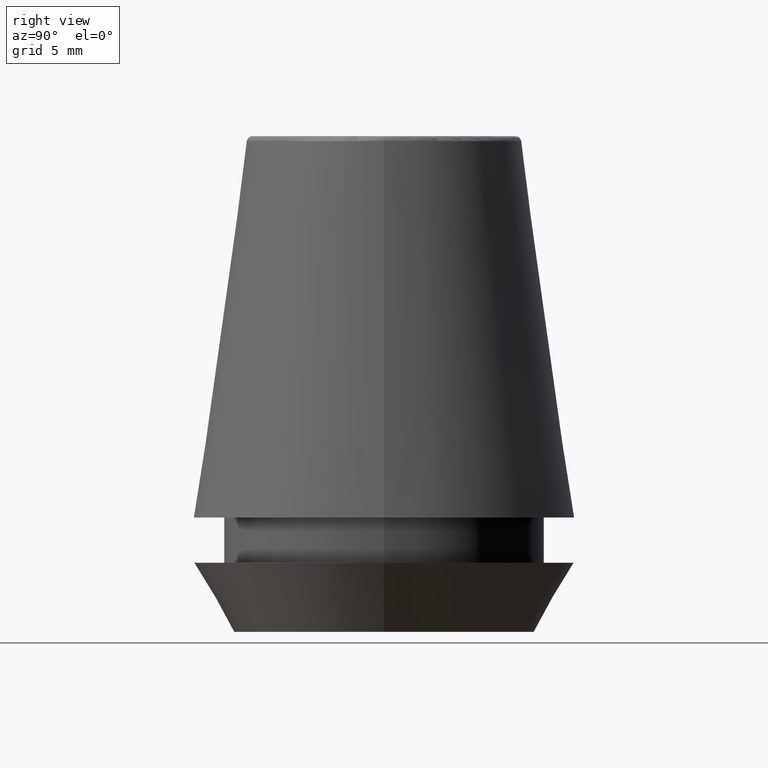
[diagram: clean part render]
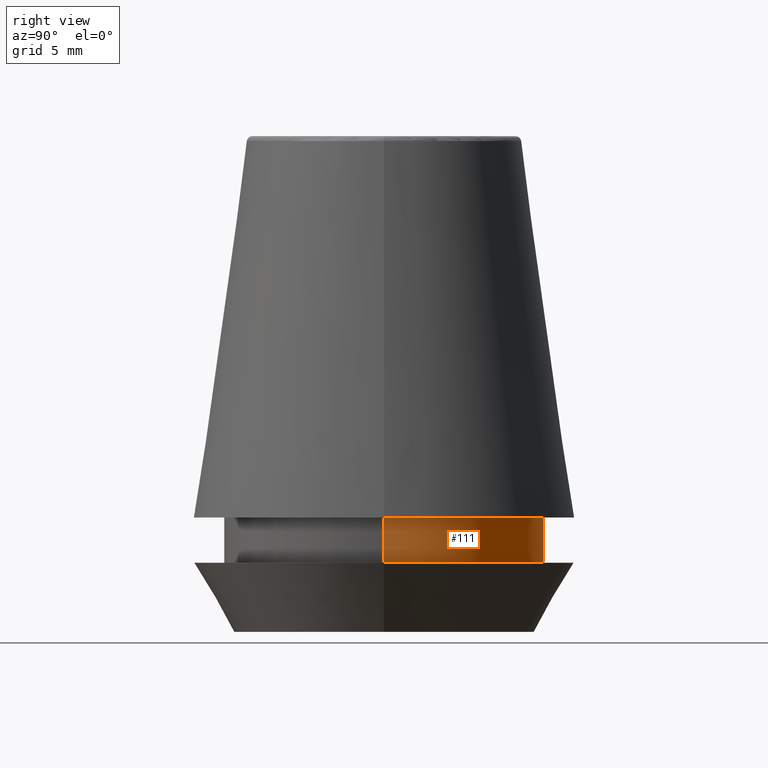
[diagram: same view with one face highlighted and labeled with its STEP entity id]
A machine part, right view. The second image highlights one B-rep face of the part: STEP entity #111.
In plain terms, the highlighted cylindrical surface (partial cylindrical patch) has radius 11 mm, axis along (-0, -0, 1).
Its self-contained STEP definition (entity closure, byte-faithful):
#11 = ORIENTED_EDGE ( 'NONE', *, *, #186, .T. ) ;
#12 = AXIS2_PLACEMENT_3D ( 'NONE', #345, #176, #41 ) ;
#33 = VERTEX_POINT ( 'NONE', #300 ) ;
#36 = CYLINDRICAL_SURFACE ( 'NONE', #44, 11.00000000000000000 ) ;
#41 = DIRECTION ( 'NONE',  ( 1.000000000000000000, 0.0000000000000000000, 0.0000000000000000000 ) ) ;
#44 = AXIS2_PLACEMENT_3D ( 'NONE', #294, #377, #230 ) ;
#57 = CIRCLE ( 'NONE', #273, 11.00000000000000000 ) ;
#86 = EDGE_LOOP ( 'NONE', ( #283, #11, #257, #224 ) ) ;
#87 = VECTOR ( 'NONE', #145, 1000.000000000000000 ) ;
#111 = ADVANCED_FACE ( 'NONE', ( #305 ), #36, .T. ) ;
#145 = DIRECTION ( 'NONE',  ( -0.0000000000000000000, -0.0000000000000000000, 1.000000000000000000 ) ) ;
#157 = DIRECTION ( 'NONE',  ( -0.0000000000000000000, -0.0000000000000000000, 1.000000000000000000 ) ) ;
#166 = EDGE_CURVE ( 'NONE', #187, #243, #351, .T. ) ;
#173 = DIRECTION ( 'NONE',  ( -0.0000000000000000000, -0.0000000000000000000, 1.000000000000000000 ) ) ;
#176 = DIRECTION ( 'NONE',  ( -0.0000000000000000000, -0.0000000000000000000, 1.000000000000000000 ) ) ;
#182 = VECTOR ( 'NONE', #173, 1000.000000000000000 ) ;
#186 = EDGE_CURVE ( 'NONE', #243, #33, #199, .T. ) ;
#187 = VERTEX_POINT ( 'NONE', #229 ) ;
#195 = VERTEX_POINT ( 'NONE', #346 ) ;
#197 = CARTESIAN_POINT ( 'NONE',  ( -11.00000000000000000, 1.347111479062088400E-015, 4.742050807568884500 ) ) ;
#199 = LINE ( 'NONE', #289, #182 ) ;
#208 = CARTESIAN_POINT ( 'NONE',  ( 0.0000000000000000000, 0.0000000000000000000, 7.842050807568890400 ) ) ;
#224 = ORIENTED_EDGE ( 'NONE', *, *, #250, .F. ) ;
#228 = LINE ( 'NONE', #371, #87 ) ;
#229 = CARTESIAN_POINT ( 'NONE',  ( 11.00000000000000000, 0.0000000000000000000, 4.742050807568884500 ) ) ;
#230 = DIRECTION ( 'NONE',  ( 1.000000000000000000, 0.0000000000000000000, 0.0000000000000000000 ) ) ;
#243 = VERTEX_POINT ( 'NONE', #197 ) ;
#250 = EDGE_CURVE ( 'NONE', #187, #195, #228, .T. ) ;
#257 = ORIENTED_EDGE ( 'NONE', *, *, #299, .F. ) ;
#273 = AXIS2_PLACEMENT_3D ( 'NONE', #208, #157, #348 ) ;
#283 = ORIENTED_EDGE ( 'NONE', *, *, #166, .T. ) ;
#289 = CARTESIAN_POINT ( 'NONE',  ( -11.00000000000000000, 1.347111479062088400E-015, 101.8074564848000400 ) ) ;
#294 = CARTESIAN_POINT ( 'NONE',  ( 0.0000000000000000000, 0.0000000000000000000, 101.8074564848000400 ) ) ;
#299 = EDGE_CURVE ( 'NONE', #195, #33, #57, .T. ) ;
#300 = CARTESIAN_POINT ( 'NONE',  ( -11.00000000000000000, 1.347111479062088400E-015, 7.842050807568890400 ) ) ;
#305 = FACE_OUTER_BOUND ( 'NONE', #86, .T. ) ;
#345 = CARTESIAN_POINT ( 'NONE',  ( 0.0000000000000000000, 0.0000000000000000000, 4.742050807568884500 ) ) ;
#346 = CARTESIAN_POINT ( 'NONE',  ( 11.00000000000000000, 0.0000000000000000000, 7.842050807568890400 ) ) ;
#348 = DIRECTION ( 'NONE',  ( 1.000000000000000000, 0.0000000000000000000, 0.0000000000000000000 ) ) ;
#351 = CIRCLE ( 'NONE', #12, 11.00000000000000000 ) ;
#371 = CARTESIAN_POINT ( 'NONE',  ( 11.00000000000000000, 0.0000000000000000000, 101.8074564848000400 ) ) ;
#377 = DIRECTION ( 'NONE',  ( -0.0000000000000000000, -0.0000000000000000000, 1.000000000000000000 ) ) ;